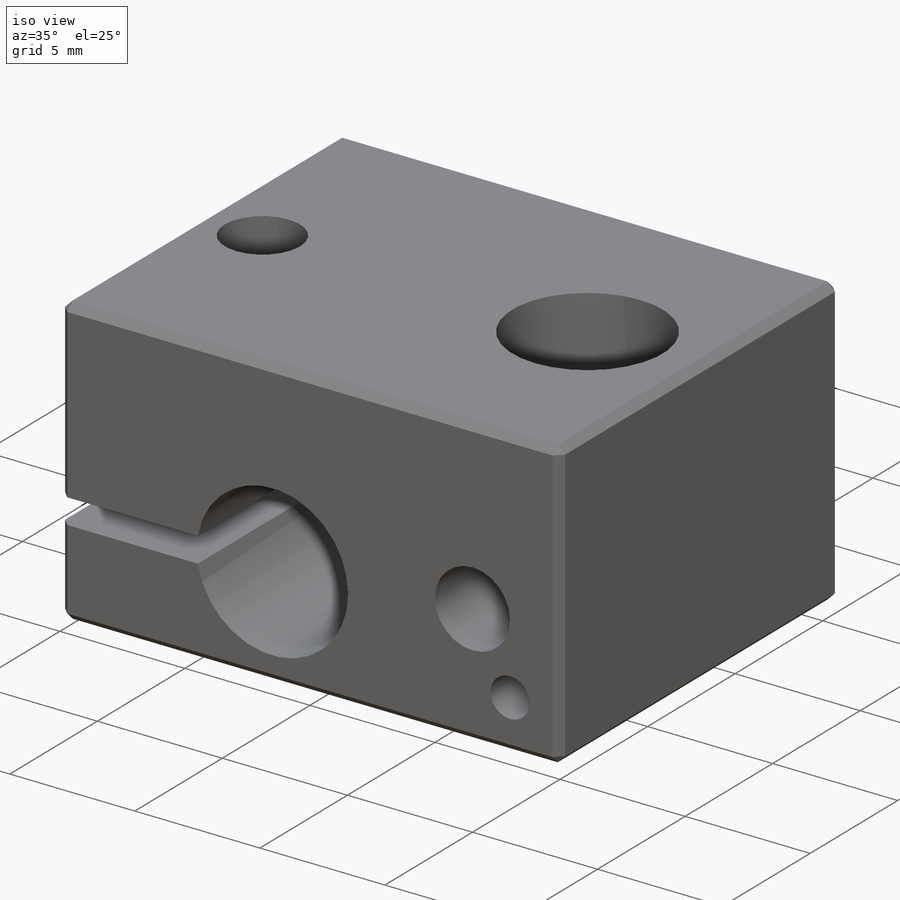
[diagram: iso view]
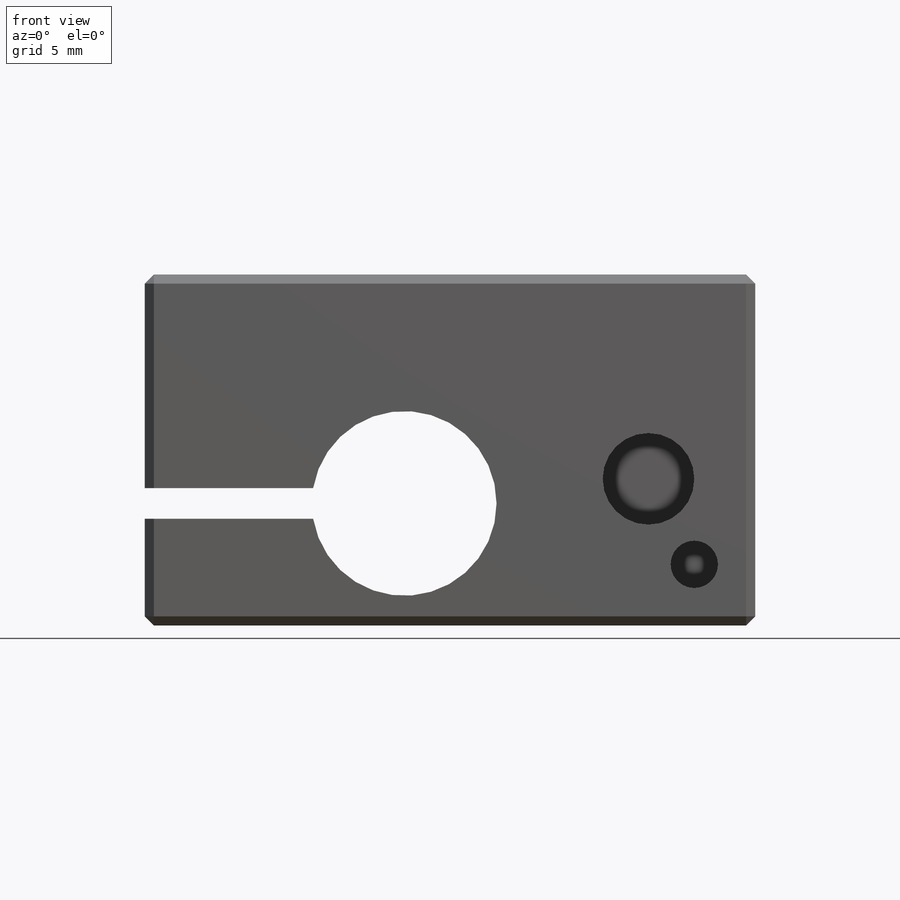
[diagram: front view]
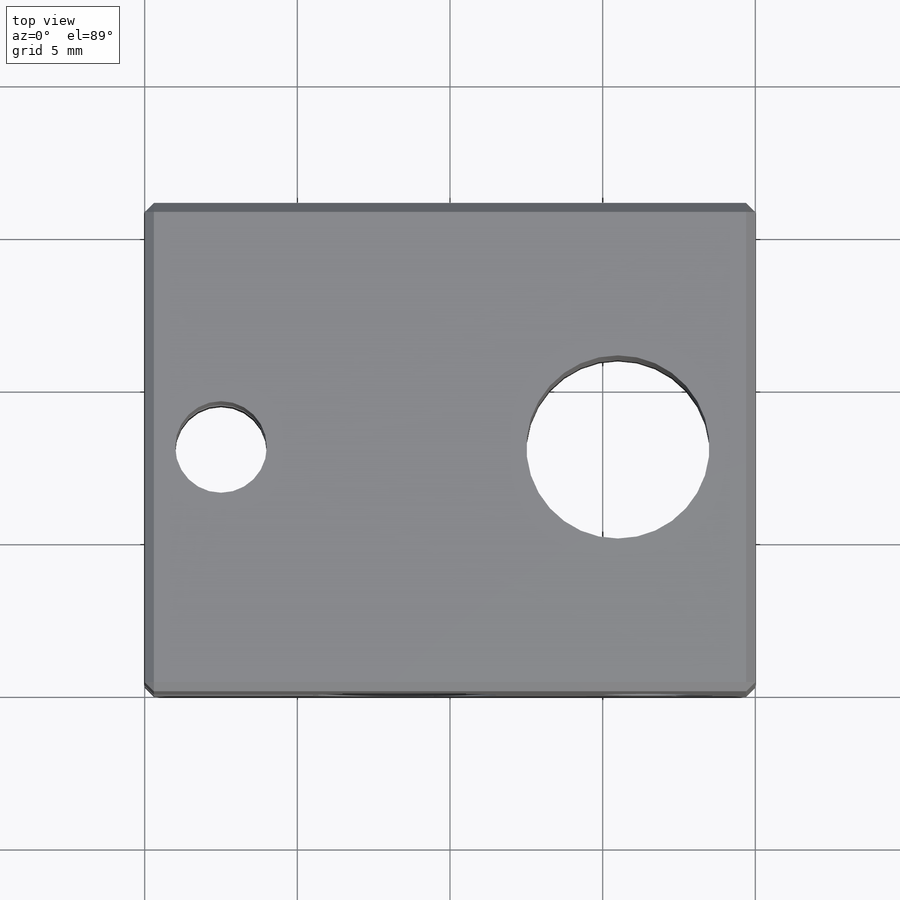
[diagram: top view]
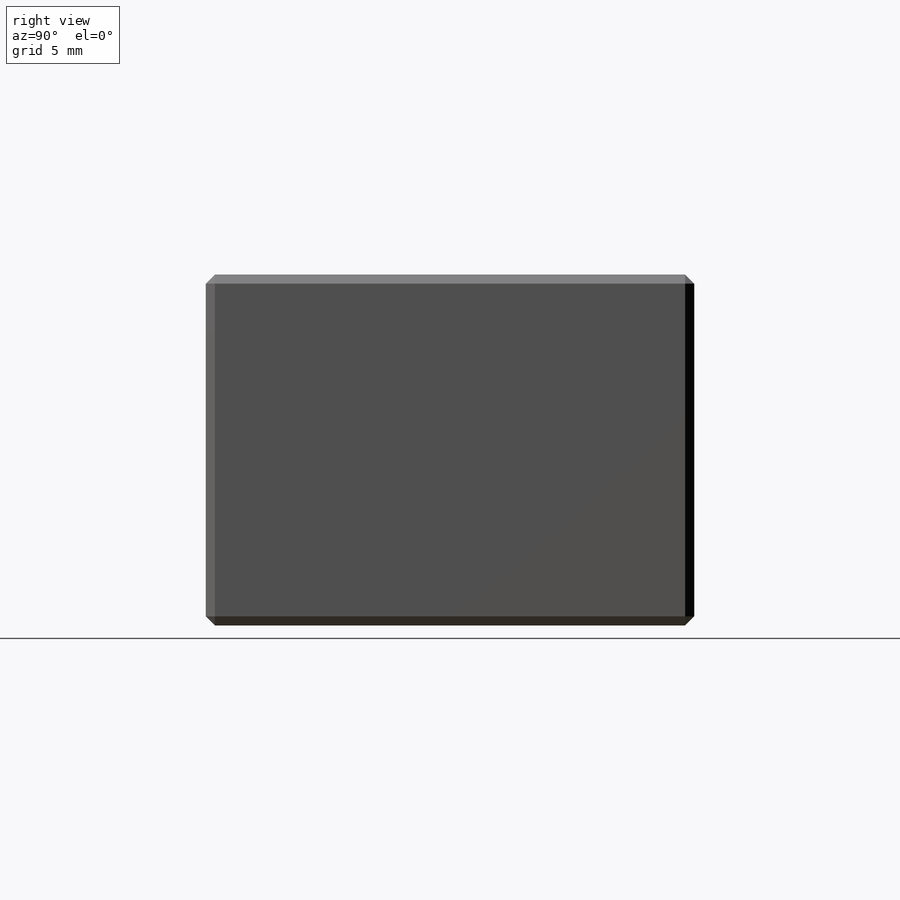
[diagram: right view]
SOLIDWORKS PART (.sldprt)
format: sldprt  version: not decoded by parser v0  size: 204,800 bytes
history: native  units: mm
features: sketch x3, cut_extrude x2, material x1, extrude x1, chamfer x1 (+12 scaffold rows collapsed)
feature tree (20):
  scaffold x12  (default folders/planes/origin — collapsed)
  material  "Material <not specified>"
  sketch  "Sketch1"  dims[c1.D3=6.0mm c1.D5=3.0mm c1.D1=20.0mm c1.D2=16.0mm c1.D4=4.5mm c2.D5=4.5mm c2.D6=17.5mm]
  extrude  "Boss-Extrude1"  Depth=11.5mm
  sketch  "Sketch2"  dims[D1=6.05mm D2=4.0mm D3=11.5mm D4=1.0mm]
  cut_extrude  "Cut-Extrude1"  [1 undecoded]
  sketch  "Sketch3"  dims[D1=3.0mm D2=1.55mm D3=2.0mm D4=2.0mm D5=4.8mm D6=3.5mm]
  cut_extrude  "Cut-Extrude2"  Depth=4mm
  chamfer  "Chamfer1"  Distance=0.3mm Angle=45deg
decode coverage: 6 of 7 modeling features carry decoded parameters
note: 1 parameter value undecoded
note: suppression state not decoded; provenance and decode notes live in map.json
